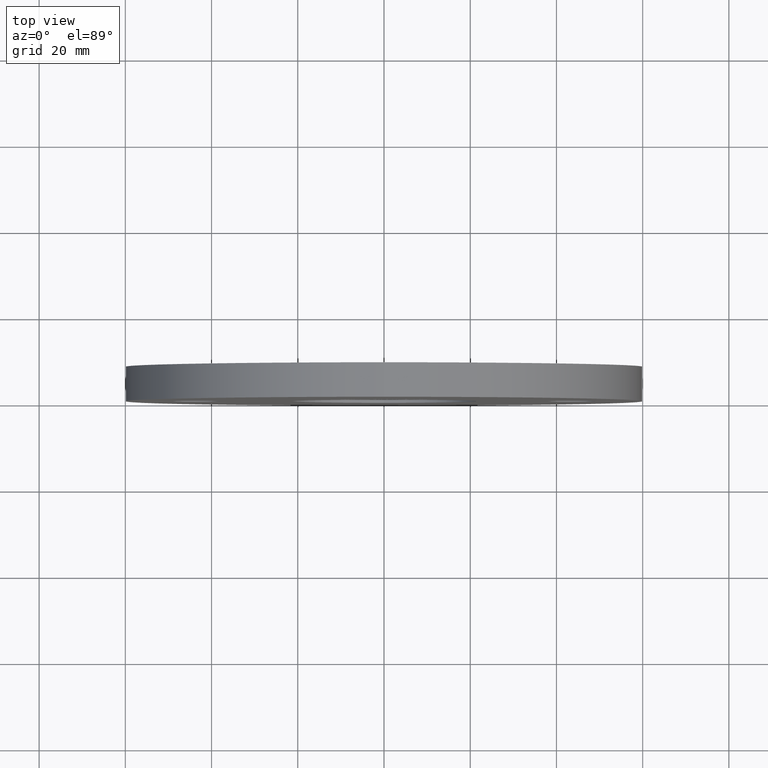
[diagram: clean part render]
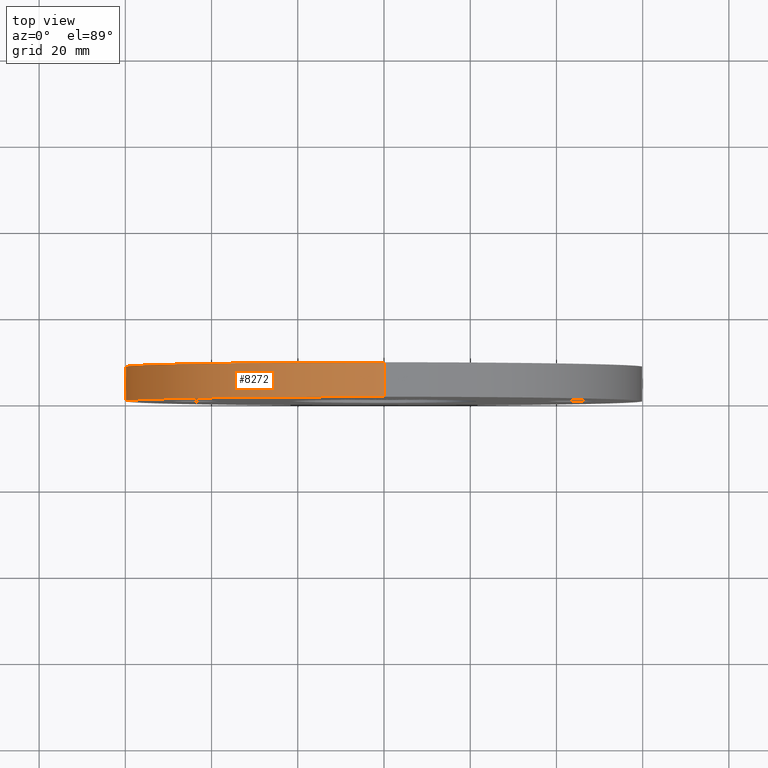
[diagram: same view with one face highlighted and labeled with its STEP entity id]
A machine part, top view. The second image highlights one B-rep face of the part: STEP entity #8272.
In plain terms, the highlighted cylindrical surface (partial cylindrical patch) has radius 60 mm, axis along (-0, -1, -0).
Its self-contained STEP definition (entity closure, byte-faithful):
#158 = VERTEX_POINT ( 'NONE', #4154 ) ;
#667 = CIRCLE ( 'NONE', #8308, 60.00000000000000000 ) ;
#1275 = ORIENTED_EDGE ( 'NONE', *, *, #10508, .F. ) ;
#1405 = LINE ( 'NONE', #7485, #7298 ) ;
#1430 = CARTESIAN_POINT ( 'NONE',  ( 0.0000000000000000000, 8.000000000000000000, 0.0000000000000000000 ) ) ;
#2074 = DIRECTION ( 'NONE',  ( 0.0000000000000000000, 1.000000000000000000, 0.0000000000000000000 ) ) ;
#2103 = CYLINDRICAL_SURFACE ( 'NONE', #9135, 60.00000000000000000 ) ;
#2152 = ORIENTED_EDGE ( 'NONE', *, *, #5342, .T. ) ;
#2318 = EDGE_CURVE ( 'NONE', #12179, #10492, #5799, .T. ) ;
#2322 = DIRECTION ( 'NONE',  ( -0.0000000000000000000, -1.000000000000000000, -0.0000000000000000000 ) ) ;
#2394 = CARTESIAN_POINT ( 'NONE',  ( 0.0000000000000000000, 8.000000000000000000, -60.00000000000000000 ) ) ;
#3200 = LINE ( 'NONE', #2394, #10433 ) ;
#3251 = AXIS2_PLACEMENT_3D ( 'NONE', #7639, #2074, #8676 ) ;
#3581 = EDGE_CURVE ( 'NONE', #158, #10479, #667, .T. ) ;
#3588 = FACE_OUTER_BOUND ( 'NONE', #9385, .T. ) ;
#4154 = CARTESIAN_POINT ( 'NONE',  ( 0.0000000000000000000, 0.0000000000000000000, -60.00000000000000000 ) ) ;
#4629 = DIRECTION ( 'NONE',  ( -0.0000000000000000000, -1.000000000000000000, -0.0000000000000000000 ) ) ;
#5342 = EDGE_CURVE ( 'NONE', #12179, #158, #3200, .T. ) ;
#5409 = CARTESIAN_POINT ( 'NONE',  ( 7.347880794884118400E-015, 8.000000000000000000, 60.00000000000000000 ) ) ;
#5799 = CIRCLE ( 'NONE', #3251, 60.00000000000000000 ) ;
#6351 = CARTESIAN_POINT ( 'NONE',  ( 0.0000000000000000000, 0.0000000000000000000, 0.0000000000000000000 ) ) ;
#6392 = DIRECTION ( 'NONE',  ( 0.0000000000000000000, 1.000000000000000000, 0.0000000000000000000 ) ) ;
#6926 = ORIENTED_EDGE ( 'NONE', *, *, #2318, .F. ) ;
#7192 = DIRECTION ( 'NONE',  ( -0.0000000000000000000, -1.000000000000000000, -0.0000000000000000000 ) ) ;
#7298 = VECTOR ( 'NONE', #4629, 1000.000000000000000 ) ;
#7485 = CARTESIAN_POINT ( 'NONE',  ( 7.347880794884118400E-015, 8.000000000000000000, 60.00000000000000000 ) ) ;
#7639 = CARTESIAN_POINT ( 'NONE',  ( 0.0000000000000000000, 8.000000000000000000, 0.0000000000000000000 ) ) ;
#8010 = DIRECTION ( 'NONE',  ( 0.0000000000000000000, 0.0000000000000000000, -1.000000000000000000 ) ) ;
#8261 = DIRECTION ( 'NONE',  ( 0.0000000000000000000, 0.0000000000000000000, 1.000000000000000000 ) ) ;
#8272 = ADVANCED_FACE ( 'NONE', ( #3588 ), #2103, .T. ) ;
#8308 = AXIS2_PLACEMENT_3D ( 'NONE', #6351, #6392, #8261 ) ;
#8648 = ORIENTED_EDGE ( 'NONE', *, *, #3581, .T. ) ;
#8655 = CARTESIAN_POINT ( 'NONE',  ( 0.0000000000000000000, 8.000000000000000000, -60.00000000000000000 ) ) ;
#8676 = DIRECTION ( 'NONE',  ( 0.0000000000000000000, 0.0000000000000000000, 1.000000000000000000 ) ) ;
#9135 = AXIS2_PLACEMENT_3D ( 'NONE', #1430, #2322, #8010 ) ;
#9385 = EDGE_LOOP ( 'NONE', ( #1275, #6926, #2152, #8648 ) ) ;
#10433 = VECTOR ( 'NONE', #7192, 1000.000000000000000 ) ;
#10479 = VERTEX_POINT ( 'NONE', #11100 ) ;
#10492 = VERTEX_POINT ( 'NONE', #5409 ) ;
#10508 = EDGE_CURVE ( 'NONE', #10492, #10479, #1405, .T. ) ;
#11100 = CARTESIAN_POINT ( 'NONE',  ( 7.347880794884118400E-015, 0.0000000000000000000, 60.00000000000000000 ) ) ;
#12179 = VERTEX_POINT ( 'NONE', #8655 ) ;